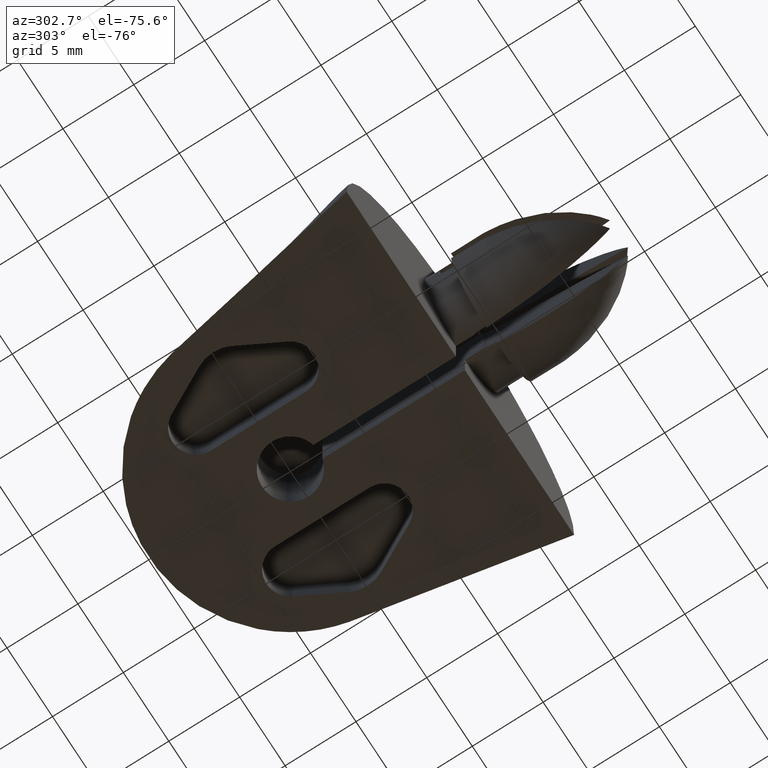
[diagram: clean part render]
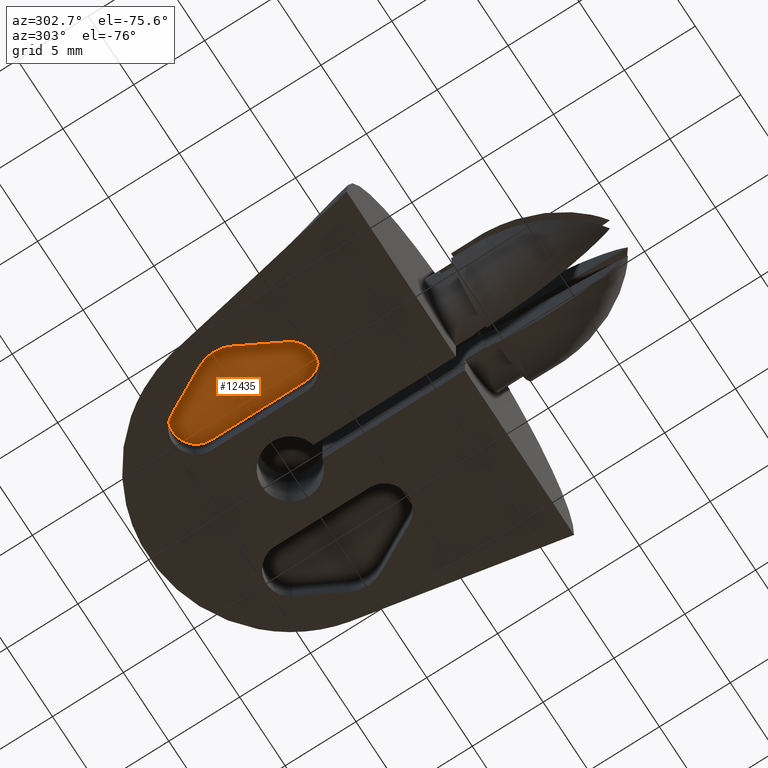
[diagram: same view with one face highlighted and labeled with its STEP entity id]
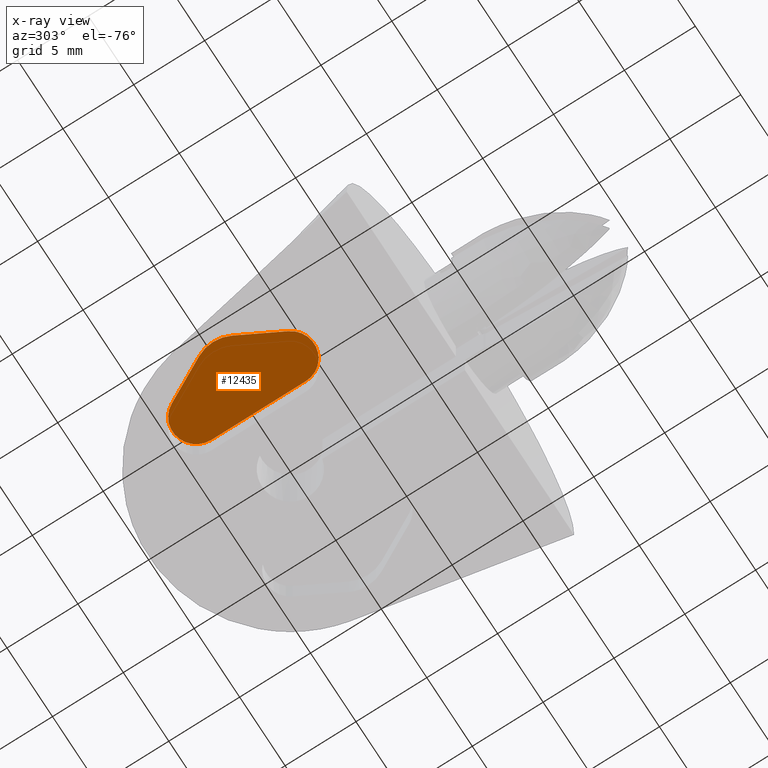
[diagram: x-ray of the same camera — body ghosted, the highlighted face saturated]
A machine part, auxiliary view. The second image highlights one B-rep face of the part: STEP entity #12435.
The next image is the same camera in x-ray: the body ghosted, the highlighted face saturated — about 0% of this face is hidden behind the body in this view.
In plain terms, the highlighted planar face has unit normal (-0, 0, -1).
Its self-contained STEP definition (entity closure, byte-faithful):
#12280=CARTESIAN_POINT('',(-3.499999970847654,-3.333455494138846,2.499858074983003));
#12281=VERTEX_POINT('',#12280);
#12289=CARTESIAN_POINT('',(-6.637254872821963,-4.117769219528938,2.499819783855692));
#12290=VERTEX_POINT('',#12289);
#12297=CARTESIAN_POINT('',(-5.166666637727916,-3.333455494145384,2.499858094410045));
#12298=DIRECTION('',(-0.000000011656221,0.000048867812144,-0.999999998805969));
#12299=DIRECTION('',(-0.882352940943355,-0.470588235169815,-0.000022986332600));
#12300=AXIS2_PLACEMENT_3D('',#12297,#12298,#12299);
#12301=CIRCLE('',#12300,1.666666666880257);
#12302=EDGE_CURVE('',#12281,#12290,#12301,.T.);
#12314=CARTESIAN_POINT('',(-8.205882323800381,-1.176592755966126,2.499963530999033));
#12315=VERTEX_POINT('',#12314);
#12322=CARTESIAN_POINT('',(-6.637254872821963,-4.117769219528938,2.499819783855685));
#12323=DIRECTION('',(-0.470588235731216,0.882352939889526,0.000043124143042));
#12324=VECTOR('',#12323,3.333333330232994);
#12325=LINE('',#12322,#12324);
#12326=EDGE_CURVE('',#12290,#12315,#12325,.T.);
#12338=CARTESIAN_POINT('',(-8.205882323799422,1.176348414886220,2.500078514086304));
#12339=VERTEX_POINT('',#12338);
#12346=CARTESIAN_POINT('',(-5.999999976125829,-0.000122170539584,2.500020996830422));
#12347=DIRECTION('',(-0.000000011656223,0.000048867812145,-0.999999998805969));
#12348=DIRECTION('',(-0.882352940942957,0.470588235169556,0.000023006902404));
#12349=AXIS2_PLACEMENT_3D('',#12346,#12347,#12348);
#12350=CIRCLE('',#12349,2.499999994691640);
#12351=EDGE_CURVE('',#12315,#12339,#12350,.T.);
#12363=CARTESIAN_POINT('',(-6.637254871986997,4.117524880008489,2.500222224661172));
#12364=VERTEX_POINT('',#12363);
#12371=CARTESIAN_POINT('',(-8.205882323799422,1.176348414886220,2.500078514086304));
#12372=DIRECTION('',(0.470588235731996,0.882352939889646,0.000043113172482));
#12373=VECTOR('',#12372,3.333333331999874);
#12374=LINE('',#12371,#12373);
#12375=EDGE_CURVE('',#12339,#12364,#12374,.T.);
#12387=CARTESIAN_POINT('',(-3.499999970870057,3.333211154846055,2.500183860396810));
#12388=VERTEX_POINT('',#12387);
#12395=CARTESIAN_POINT('',(-5.166666637295208,3.333211154839503,2.500183879823859));
#12396=DIRECTION('',(-0.000000011656221,0.000048867812144,-0.999999998805968));
#12397=DIRECTION('',(1.0,3.929182E-012,-0.000000011656221));
#12398=AXIS2_PLACEMENT_3D('',#12395,#12396,#12397);
#12399=CIRCLE('',#12398,1.666666666425145);
#12400=EDGE_CURVE('',#12364,#12388,#12399,.T.);
#12410=CARTESIAN_POINT('',(-3.499999970870057,3.333211154846055,2.500183860396810));
#12411=DIRECTION('',(3.359446E-012,-0.999999998805968,-0.000048867812144));
#12412=VECTOR('',#12411,6.666666656945111);
#12413=LINE('',#12410,#12412);
#12414=EDGE_CURVE('',#12388,#12281,#12413,.T.);
#12422=CARTESIAN_POINT('',(-9.000011970815258,-6.000134156899307,2.499727824340255));
#12423=DIRECTION('',(-0.000000011656221,0.000048867812144,-0.999999998805968));
#12424=DIRECTION('',(-3.359568E-012,0.999999998805968,0.000048867812144));
#12425=AXIS2_PLACEMENT_3D('',#12422,#12423,#12424);
#12426=PLANE('',#12425);
#12427=ORIENTED_EDGE('',*,*,#12302,.T.);
#12428=ORIENTED_EDGE('',*,*,#12326,.T.);
#12429=ORIENTED_EDGE('',*,*,#12351,.T.);
#12430=ORIENTED_EDGE('',*,*,#12375,.T.);
#12431=ORIENTED_EDGE('',*,*,#12400,.T.);
#12432=ORIENTED_EDGE('',*,*,#12414,.T.);
#12433=EDGE_LOOP('',(#12427,#12428,#12429,#12430,#12431,#12432));
#12434=FACE_OUTER_BOUND('',#12433,.T.);
#12435=ADVANCED_FACE('',(#12434),#12426,.T.);